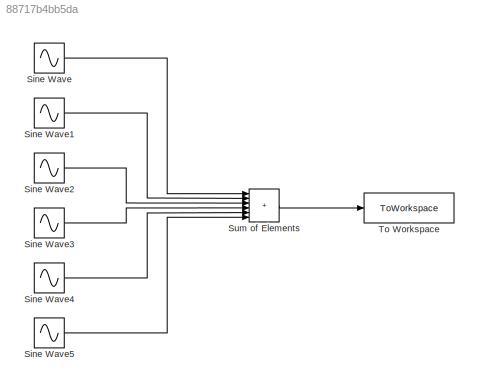
MODEL slx_88717b4bb5da
KIND model
CONFIG AbsTol = auto
CONFIG EnableMultiTasking = off
CONFIG FixedStep = auto
CONFIG MaxStep = auto
CONFIG MinStep = auto
CONFIG RelTol = 1e-3
CONFIG SampleTimeConstraint = Unconstrained
CONFIG Solver = VariableStepAuto
CONFIG SolverName = VariableStepAuto
CONFIG StartTime = 0.0
CONFIG StopTime = T-1/Fe
BLOCK [Sin] Sine Wave
  Frequency = 2*pi*F1
  Ports = [0, 1]
  SampleTime = 0
BLOCK [Sin] Sine Wave1
  Frequency = 2*pi*F2
  Ports = [0, 1]
  SampleTime = 0
BLOCK [Sin] Sine Wave2
  Frequency = 2*pi*F3
  Ports = [0, 1]
  SampleTime = 0
BLOCK [Sin] Sine Wave3
  Frequency = 2*pi*F4
  Ports = [0, 1]
  SampleTime = 0
BLOCK [Sin] Sine Wave4
  Frequency = 2*pi*F5
  Ports = [0, 1]
  SampleTime = 0
BLOCK [Sin] Sine Wave5
  Frequency = 2*pi*F6
  Ports = [0, 1]
  SampleTime = 0
BLOCK [Sum] Sum of Elements
  IconShape = rectangular
  Inputs = ++++++
  Ports = [6, 1]
BLOCK [ToWorkspace] To Workspace
  FixptAsFi = on
  MaxDataPoints = inf
  Ports = [1]
  SampleTime = 1/Fe
  SaveFormat = Timeseries
  VariableName = Signal_E
LINE Sine Wave1:1 -> Sum of Elements:2
LINE Sine Wave2:1 -> Sum of Elements:3
LINE Sine Wave3:1 -> Sum of Elements:4
LINE Sine Wave4:1 -> Sum of Elements:5
LINE Sine Wave5:1 -> Sum of Elements:6
LINE Sine Wave:1 -> Sum of Elements:1
LINE Sum of Elements:1 -> To Workspace:1
